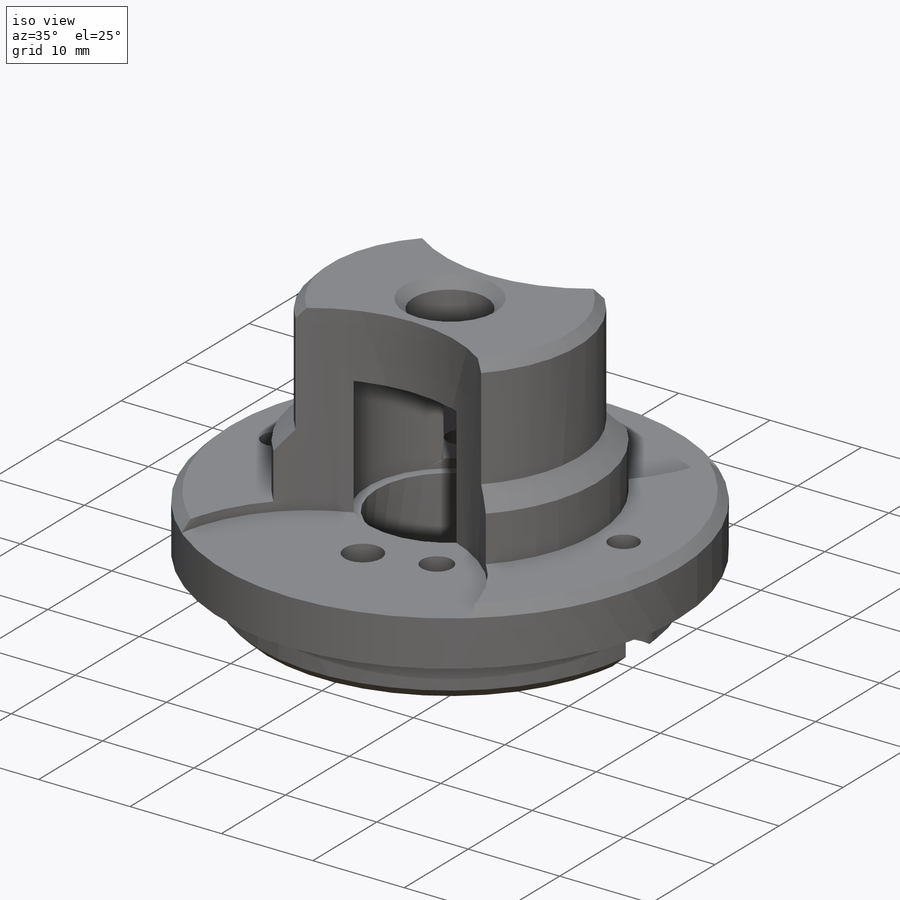
[diagram: iso view]
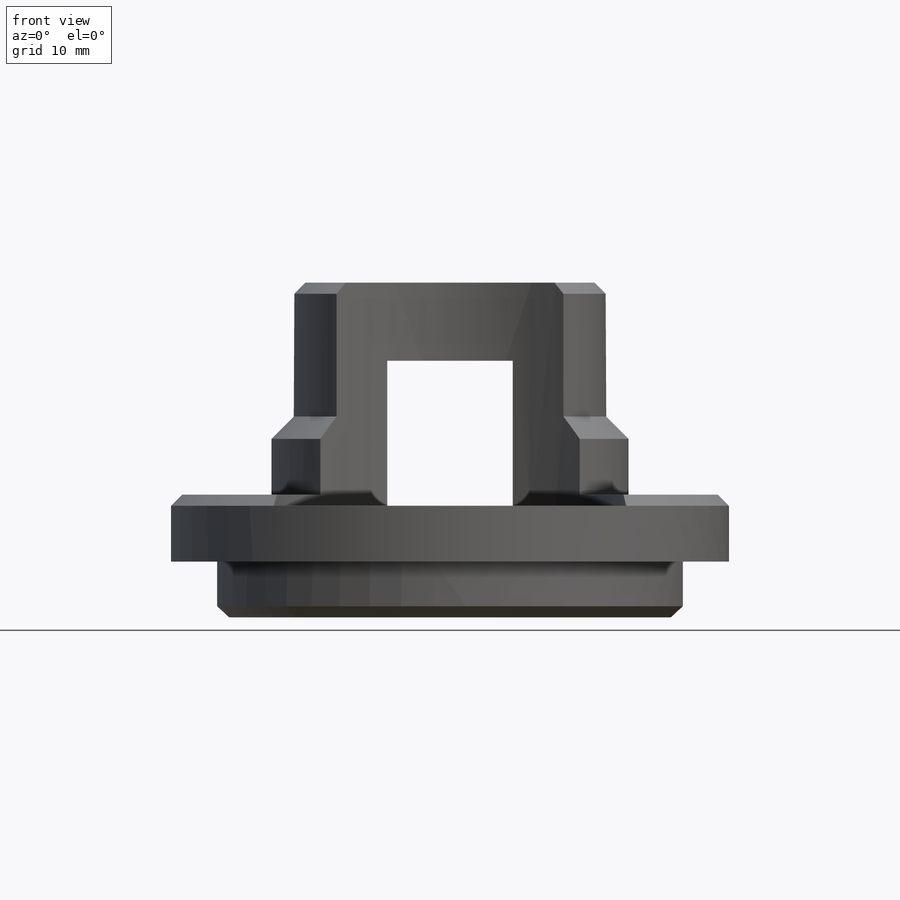
[diagram: front view]
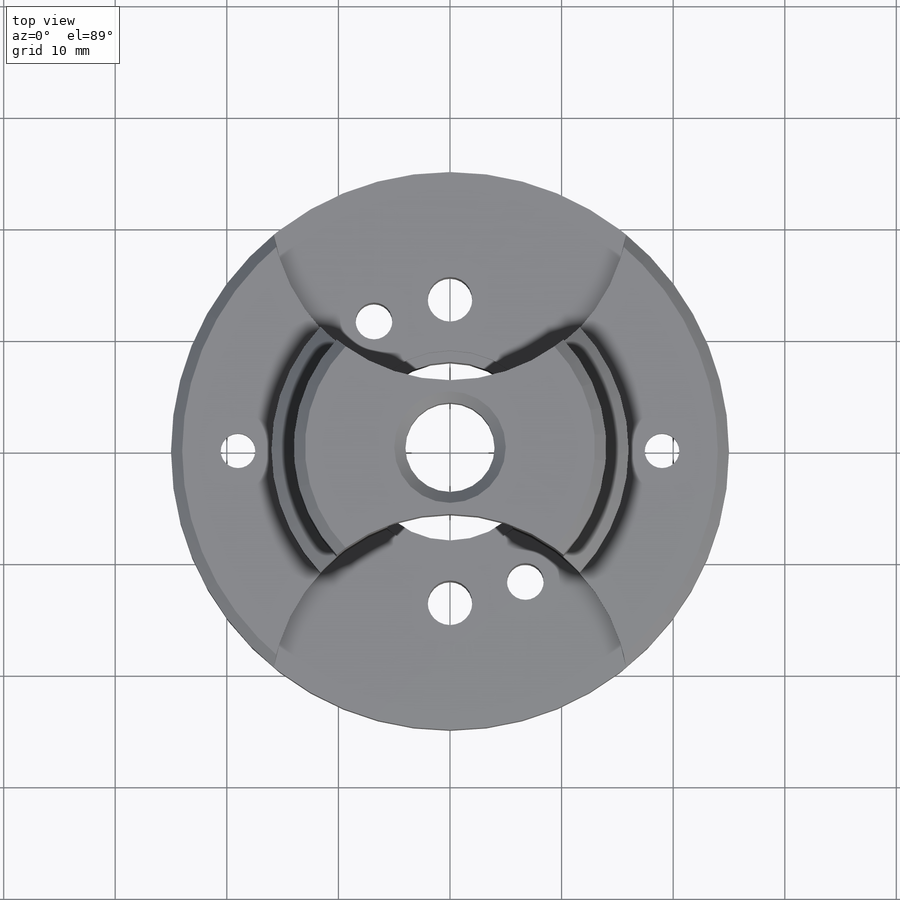
[diagram: top view]
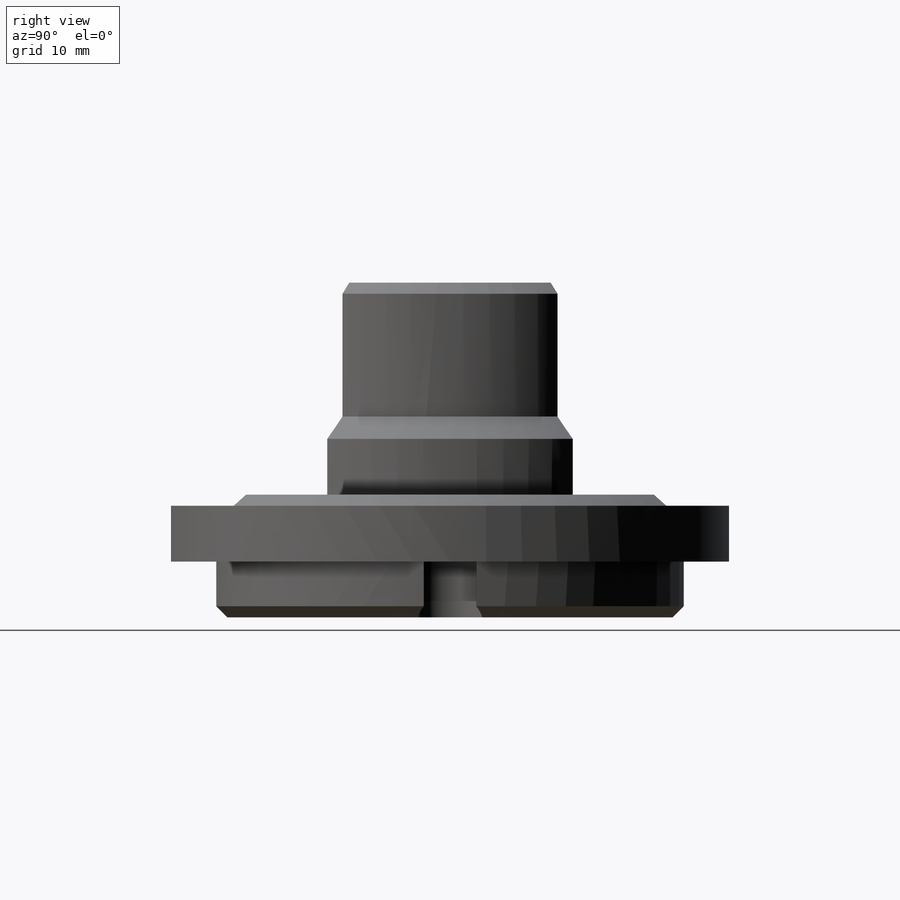
[diagram: right view]
SOLIDWORKS PART (.sldprt)
format: sldprt  version: not decoded by parser v0  size: 317,952 bytes
history: native  units: mm
features: sketch x7, cut_extrude x4, plane x3, thread x2, material x1, revolve x1, hole x1, chamfer x1 (+9 scaffold rows collapsed)
feature tree (29):
  scaffold x9  (default folders/planes/origin — collapsed)
  material  "Matériau <non spécifié>"
  plane  "Plan de face"
  plane  "Plan de dessus"
  plane  "Plan de droite"
  sketch  "Esquisse2"  dims[c1.D1=30.0mm c1.D2=42.0mm c1.D3=5.0mm c1.D4=50.0mm c1.D5=6.0mm c1.D6=32.0mm c1.D7=5.0mm c1.D8=~4.510739mm c2.D8=45.0deg c2.D9=28.0mm c2.D10=16.0mm c2.D11=9.0mm c2.D12=14.0mm c2.D13=18.0mm c2.D14=8.0mm c2.D15=8.0mm]
  revolve  "Révolution1"  Angle=360deg
  sketch  "Esquisse3"  dims[D1=32.0mm D2=22.0mm D3=22.0mm]
  cut_extrude  "Enlèv. mat.-Extru.2"  Depth=20mm
  sketch  "Esquisse4"  dims[D1=27.2mm D2=4.0mm D3=38.0mm D4=3.1mm]
  cut_extrude  "Enlèv. mat.-Extru.4"  [1 undecoded]
  sketch  "Esquisse5"  dims[D1=38.0mm D2=3.1mm]
  cut_extrude  "Enlèv. mat.-Extru.5"  [1 undecoded]
  hole  "Trou taraudé M41"  Diameter=3.3mm Depth=10mm
  sketch  "Esquisse9"  dims[c1.D2=27.0mm c1.D1=~38.834976mm c2.D1=30.0deg c2.D2=~36.212244mm c3.D2=30.0deg]
  sketch  "Esquisse8"  dims[hole-wizard template sketch: 59 standard entries collapsed; hole parameters kept: c18.Diamètre du trou pour taraudage jusqu'au prochain=3.3mm c18.Profondeur du trou pour taraudage jusqu'au prochain=10.0mm]
  thread  "Filetage de perçage1"  Diameter=4mm  [1 undecoded]
  thread  "Filetage de perçage2"  Diameter=4mm  [1 undecoded]
  chamfer  "Chanfrein1"  Distance=1mm Angle=45deg
  sketch  "Esquisse10"  dims[D1=6.0mm]
  cut_extrude  "Enlèv. mat.-Extru.6"  Depth=8.5mm
decode coverage: 14 of 16 modeling features carry decoded parameters
note: ~ marks probable driven/reference dimensions
note: 4 parameter values undecoded
note: suppression state not decoded; provenance and decode notes live in map.json
